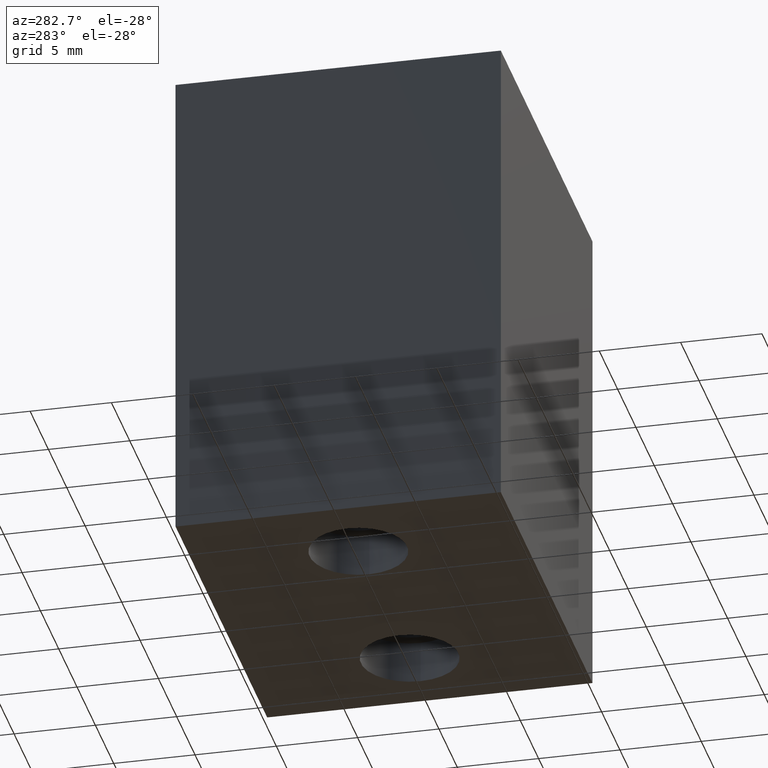
[diagram: clean part render]
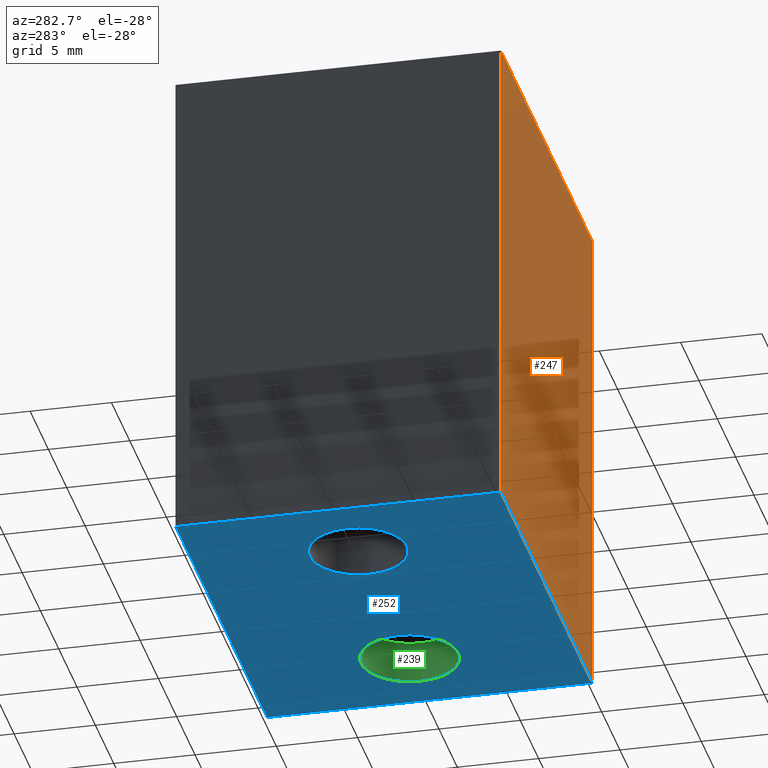
[diagram: same view with three faces highlighted in distinct colors, each labeled with its STEP entity id]
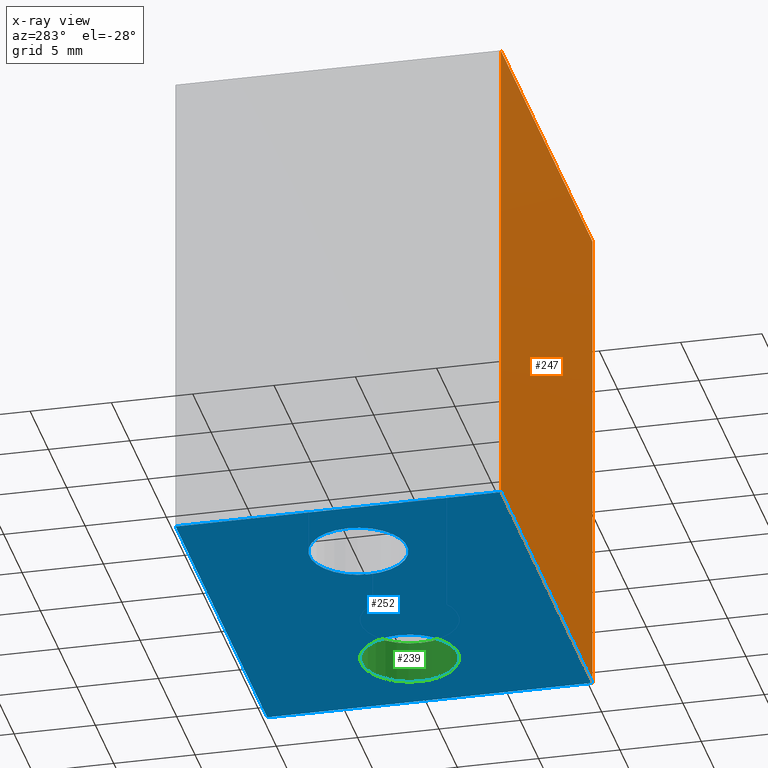
[diagram: x-ray of the same camera — body ghosted, the three highlighted faces saturated]
A machine part, auxiliary view with three faces highlighted in distinct colors.
The next image is the same camera in x-ray (body ghosted, the three faces saturated) — at least one of them is partly hidden behind the body in this view.
Their STEP definitions:

[orange] entity #247 — the highlighted planar face has unit normal (0, -1, 0).
#27=PLANE('',#298);
#43=FACE_OUTER_BOUND('',#63,.T.);
#63=EDGE_LOOP('',(#203,#204,#205,#206));
#79=LINE('',#424,#97);
#80=LINE('',#426,#98);
#81=LINE('',#428,#99);
#82=LINE('',#429,#100);
#97=VECTOR('',#358,10.);
#98=VECTOR('',#359,10.);
#99=VECTOR('',#360,10.);
#100=VECTOR('',#361,10.);
#133=VERTEX_POINT('',#422);
#134=VERTEX_POINT('',#423);
#135=VERTEX_POINT('',#425);
#136=VERTEX_POINT('',#427);
#159=EDGE_CURVE('',#133,#134,#79,.T.);
#160=EDGE_CURVE('',#134,#135,#80,.T.);
#161=EDGE_CURVE('',#136,#135,#81,.T.);
#162=EDGE_CURVE('',#133,#136,#82,.T.);
#203=ORIENTED_EDGE('',*,*,#159,.T.);
#204=ORIENTED_EDGE('',*,*,#160,.T.);
#205=ORIENTED_EDGE('',*,*,#161,.F.);
#206=ORIENTED_EDGE('',*,*,#162,.F.);
#247=ADVANCED_FACE('',(#43),#27,.T.);
#298=AXIS2_PLACEMENT_3D('',#421,#356,#357);
#356=DIRECTION('center_axis',(4.44089209850063E-17,-1.,0.));
#357=DIRECTION('ref_axis',(1.,4.44089209850063E-17,0.));
#358=DIRECTION('',(1.,4.44089209850063E-17,0.));
#359=DIRECTION('',(0.,0.,1.));
#360=DIRECTION('',(1.,4.44089209850063E-17,0.));
#361=DIRECTION('',(0.,0.,1.));
#421=CARTESIAN_POINT('Origin',(-12.5,-10.,0.));
#422=CARTESIAN_POINT('',(-12.5,-10.,0.));
#423=CARTESIAN_POINT('',(12.5,-10.,0.));
#424=CARTESIAN_POINT('',(-12.5,-10.,0.));
#425=CARTESIAN_POINT('',(12.5,-10.,30.));
#426=CARTESIAN_POINT('',(12.5,-10.,0.));
#427=CARTESIAN_POINT('',(-12.5,-10.,30.));
#428=CARTESIAN_POINT('',(-12.5,-10.,30.));
#429=CARTESIAN_POINT('',(-12.5,-10.,0.));

[blue] entity #252 — the highlighted planar face has unit normal (0, 0, 1).
#21=FACE_BOUND('',#71,.T.);
#22=FACE_BOUND('',#72,.T.);
#32=PLANE('',#303);
#48=FACE_OUTER_BOUND('',#70,.T.);
#70=EDGE_LOOP('',(#225,#226,#227,#228));
#71=EDGE_LOOP('',(#229));
#72=EDGE_LOOP('',(#230));
#79=LINE('',#424,#97);
#83=LINE('',#432,#101);
#86=LINE('',#438,#104);
#89=LINE('',#443,#107);
#97=VECTOR('',#358,10.);
#101=VECTOR('',#364,10.);
#104=VECTOR('',#369,10.);
#107=VECTOR('',#374,10.);
#109=CIRCLE('',#277,3.);
#112=CIRCLE('',#282,3.);
#121=VERTEX_POINT('',#382);
#124=VERTEX_POINT('',#391);
#133=VERTEX_POINT('',#422);
#134=VERTEX_POINT('',#423);
#137=VERTEX_POINT('',#431);
#139=VERTEX_POINT('',#437);
#141=EDGE_CURVE('',#121,#121,#109,.T.);
#145=EDGE_CURVE('',#124,#124,#112,.T.);
#159=EDGE_CURVE('',#133,#134,#79,.T.);
#163=EDGE_CURVE('',#137,#133,#83,.T.);
#166=EDGE_CURVE('',#139,#137,#86,.T.);
#169=EDGE_CURVE('',#134,#139,#89,.T.);
#225=ORIENTED_EDGE('',*,*,#169,.F.);
#226=ORIENTED_EDGE('',*,*,#159,.F.);
#227=ORIENTED_EDGE('',*,*,#163,.F.);
#228=ORIENTED_EDGE('',*,*,#166,.F.);
#229=ORIENTED_EDGE('',*,*,#141,.T.);
#230=ORIENTED_EDGE('',*,*,#145,.T.);
#252=ADVANCED_FACE('',(#48,#21,#22),#32,.F.);
#277=AXIS2_PLACEMENT_3D('',#383,#308,#309);
#282=AXIS2_PLACEMENT_3D('',#392,#319,#320);
#303=AXIS2_PLACEMENT_3D('',#446,#378,#379);
#308=DIRECTION('center_axis',(0.,0.,1.));
#309=DIRECTION('ref_axis',(-1.,0.,0.));
#319=DIRECTION('center_axis',(0.,0.,1.));
#320=DIRECTION('ref_axis',(-1.,0.,0.));
#358=DIRECTION('',(1.,4.44089209850063E-17,0.));
#364=DIRECTION('',(3.33066907387547E-16,-1.,0.));
#369=DIRECTION('',(-1.,1.77635683940025E-16,0.));
#374=DIRECTION('',(-2.22044604925031E-16,1.,0.));
#378=DIRECTION('center_axis',(0.,0.,1.));
#379=DIRECTION('ref_axis',(1.,0.,0.));
#382=CARTESIAN_POINT('',(-4.,-1.25362542679884E-15,0.));
#383=CARTESIAN_POINT('Origin',(-7.,-8.86231387054631E-16,0.));
#391=CARTESIAN_POINT('',(10.,4.96362351110204E-15,0.));
#392=CARTESIAN_POINT('Origin',(7.,5.33101755084625E-15,0.));
#422=CARTESIAN_POINT('',(-12.5,-10.,0.));
#423=CARTESIAN_POINT('',(12.5,-10.,0.));
#424=CARTESIAN_POINT('',(-12.5,-10.,0.));
#431=CARTESIAN_POINT('',(-12.5,10.,0.));
#432=CARTESIAN_POINT('',(-12.5,10.,0.));
#437=CARTESIAN_POINT('',(12.5,10.,0.));
#438=CARTESIAN_POINT('',(12.5,10.,0.));
#443=CARTESIAN_POINT('',(12.5,-10.,0.));
#446=CARTESIAN_POINT('Origin',(-1.11022302462516E-15,4.44089209850063E-15,
0.));

[green] entity #239 — the highlighted cylindrical surface (bore or boss wall) has radius 3 mm, axis along (0, 0, -1).
#35=FACE_OUTER_BOUND('',#52,.T.);
#52=EDGE_LOOP('',(#177,#178,#179,#180));
#74=LINE('',#394,#92);
#92=VECTOR('',#321,3.);
#112=CIRCLE('',#282,3.);
#113=CIRCLE('',#283,3.);
#124=VERTEX_POINT('',#391);
#125=VERTEX_POINT('',#393);
#145=EDGE_CURVE('',#124,#124,#112,.T.);
#146=EDGE_CURVE('',#124,#125,#74,.T.);
#147=EDGE_CURVE('',#125,#125,#113,.T.);
#177=ORIENTED_EDGE('',*,*,#145,.F.);
#178=ORIENTED_EDGE('',*,*,#146,.T.);
#179=ORIENTED_EDGE('',*,*,#147,.F.);
#180=ORIENTED_EDGE('',*,*,#146,.F.);
#232=CYLINDRICAL_SURFACE('',#281,3.);
#239=ADVANCED_FACE('',(#35),#232,.F.);
#281=AXIS2_PLACEMENT_3D('',#390,#317,#318);
#282=AXIS2_PLACEMENT_3D('',#392,#319,#320);
#283=AXIS2_PLACEMENT_3D('',#395,#322,#323);
#317=DIRECTION('center_axis',(0.,0.,-1.));
#318=DIRECTION('ref_axis',(-1.,0.,0.));
#319=DIRECTION('center_axis',(0.,0.,1.));
#320=DIRECTION('ref_axis',(-1.,0.,0.));
#321=DIRECTION('',(0.,0.,1.));
#322=DIRECTION('center_axis',(0.,0.,-1.));
#323=DIRECTION('ref_axis',(-1.,0.,0.));
#390=CARTESIAN_POINT('Origin',(7.,5.33101755084625E-15,1.3));
#391=CARTESIAN_POINT('',(10.,4.96362351110204E-15,0.));
#392=CARTESIAN_POINT('Origin',(7.,5.33101755084625E-15,0.));
#393=CARTESIAN_POINT('',(10.,4.96362351110204E-15,2.6));
#394=CARTESIAN_POINT('',(10.,4.96362351110204E-15,1.3));
#395=CARTESIAN_POINT('Origin',(7.,5.33101755084625E-15,2.6));